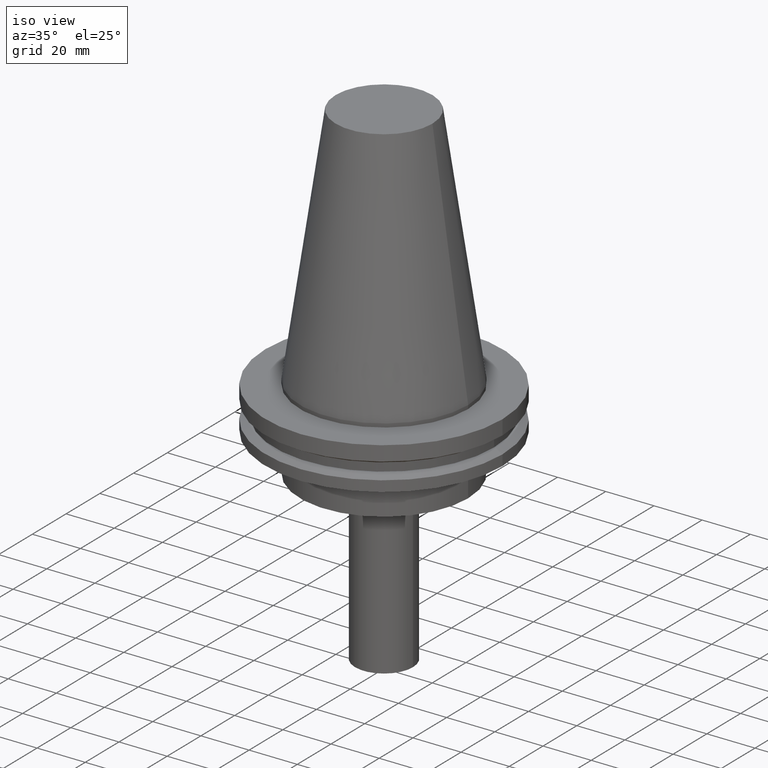
[diagram: clean part render]
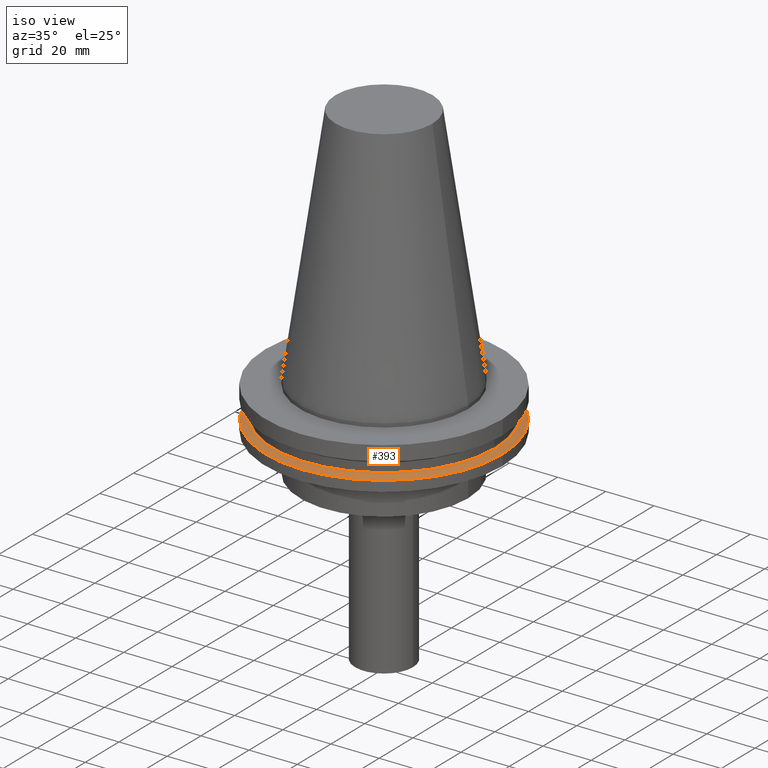
[diagram: same view with one face highlighted and labeled with its STEP entity id]
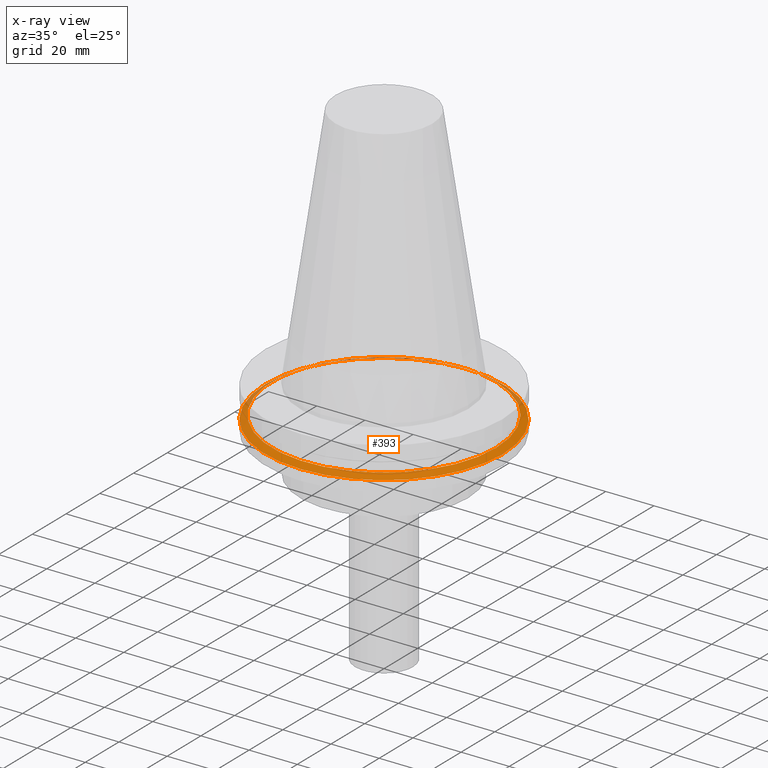
[diagram: x-ray of the same camera — body ghosted, the highlighted face saturated]
A machine part, iso view. The second image highlights one B-rep face of the part: STEP entity #393.
The next image is the same camera in x-ray: the body ghosted, the highlighted face saturated — about 11% of this face is hidden behind the body in this view.
In plain terms, the highlighted conical surface has half-angle 60 deg.
Its self-contained STEP definition (entity closure, byte-faithful):
#3 = DIRECTION ( 'NONE',  ( -0.000000000000000000, -0.000000000000000000, 1.000000000000000000 ) ) ;
#15 = FACE_BOUND ( 'NONE', #187, .T. ) ;
#16 = DIRECTION ( 'NONE',  ( -0.000000000000000000, -0.000000000000000000, 1.000000000000000000 ) ) ;
#51 = FACE_OUTER_BOUND ( 'NONE', #297, .T. ) ;
#72 = AXIS2_PLACEMENT_3D ( 'NONE', #253, #3, #136 ) ;
#111 = CARTESIAN_POINT ( 'NONE',  ( 0.000000000000000000, 0.000000000000000000, -14.65761014474876944 ) ) ;
#112 = CARTESIAN_POINT ( 'NONE',  ( 0.000000000000000000, 0.000000000000000000, -14.65761014474876944 ) ) ;
#136 = DIRECTION ( 'NONE',  ( 1.000000000000000000, 0.000000000000000000, 0.000000000000000000 ) ) ;
#156 = VERTEX_POINT ( 'NONE', #390 ) ;
#168 = DIRECTION ( 'NONE',  ( 1.000000000000000000, 0.000000000000000000, 0.000000000000000000 ) ) ;
#169 = EDGE_CURVE ( 'NONE', #156, #156, #330, .T. ) ;
#172 = ORIENTED_EDGE ( 'NONE', *, *, #169, .F. ) ;
#173 = DIRECTION ( 'NONE',  ( 0.000000000000000000, 0.000000000000000000, -1.000000000000000000 ) ) ;
#187 = EDGE_LOOP ( 'NONE', ( #172 ) ) ;
#242 = ORIENTED_EDGE ( 'NONE', *, *, #292, .T. ) ;
#253 = CARTESIAN_POINT ( 'NONE',  ( 0.000000000000000000, 0.000000000000000000, -13.05499999999999794 ) ) ;
#256 = CONICAL_SURFACE ( 'NONE', #309, 49.21499999999998920, 1.047197551196554333 ) ;
#292 = EDGE_CURVE ( 'NONE', #305, #305, #319, .T. ) ;
#295 = DIRECTION ( 'NONE',  ( -1.000000000000000000, 0.000000000000000000, 0.000000000000000000 ) ) ;
#297 = EDGE_LOOP ( 'NONE', ( #242 ) ) ;
#305 = VERTEX_POINT ( 'NONE', #357 ) ;
#309 = AXIS2_PLACEMENT_3D ( 'NONE', #111, #173, #295 ) ;
#319 = CIRCLE ( 'NONE', #368, 49.21499999999998920 ) ;
#330 = CIRCLE ( 'NONE', #72, 46.43919780457007818 ) ;
#357 = CARTESIAN_POINT ( 'NONE',  ( 49.21499999999998920, 0.000000000000000000, -14.65761014474876944 ) ) ;
#368 = AXIS2_PLACEMENT_3D ( 'NONE', #112, #16, #168 ) ;
#390 = CARTESIAN_POINT ( 'NONE',  ( 46.43919780457007818, 0.000000000000000000, -13.05499999999999794 ) ) ;
#393 = ADVANCED_FACE ( 'NONE', ( #15, #51 ), #256, .T. ) ;